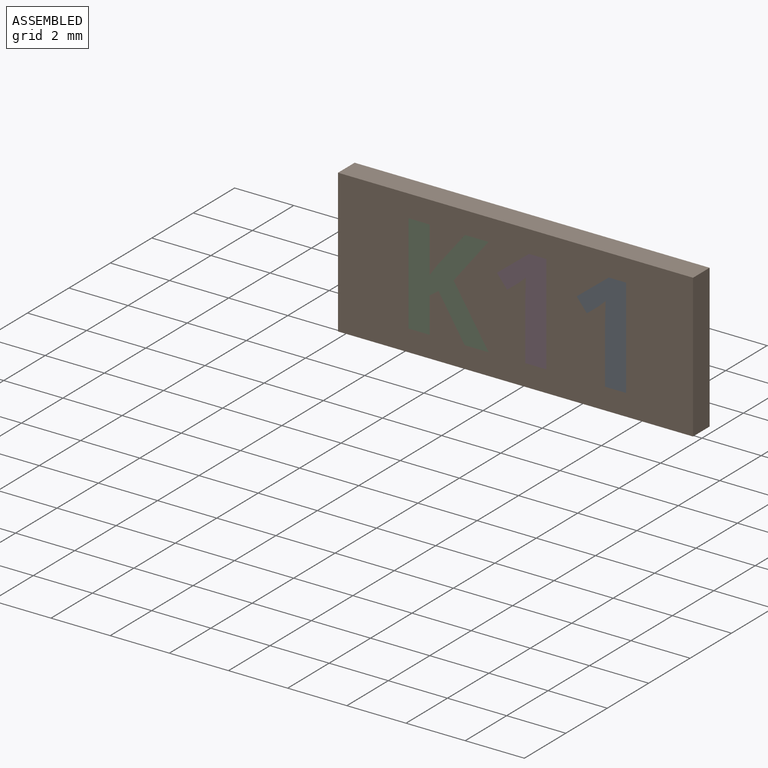
[diagram: assembled view]
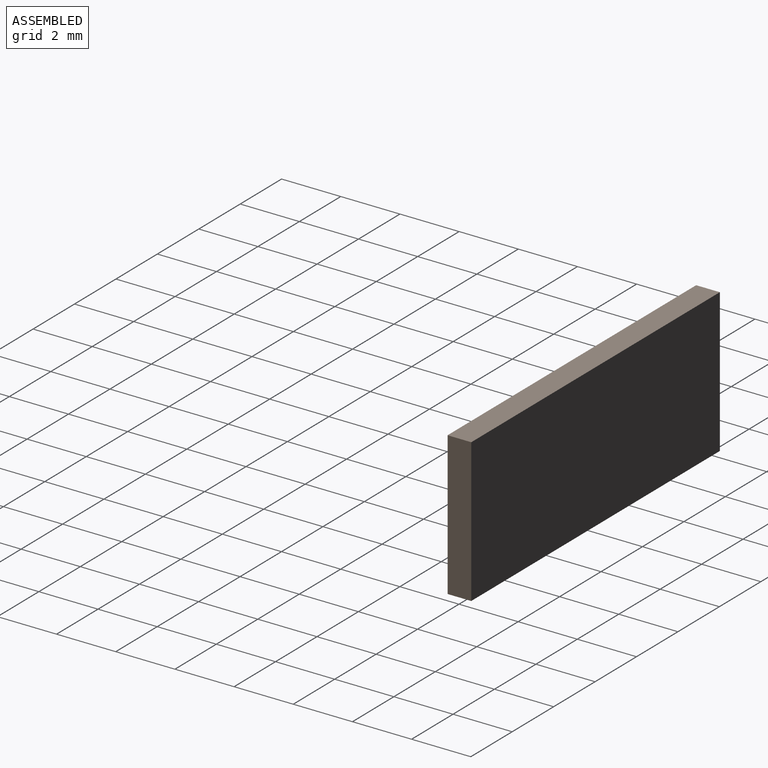
[diagram: assembled view, second angle]
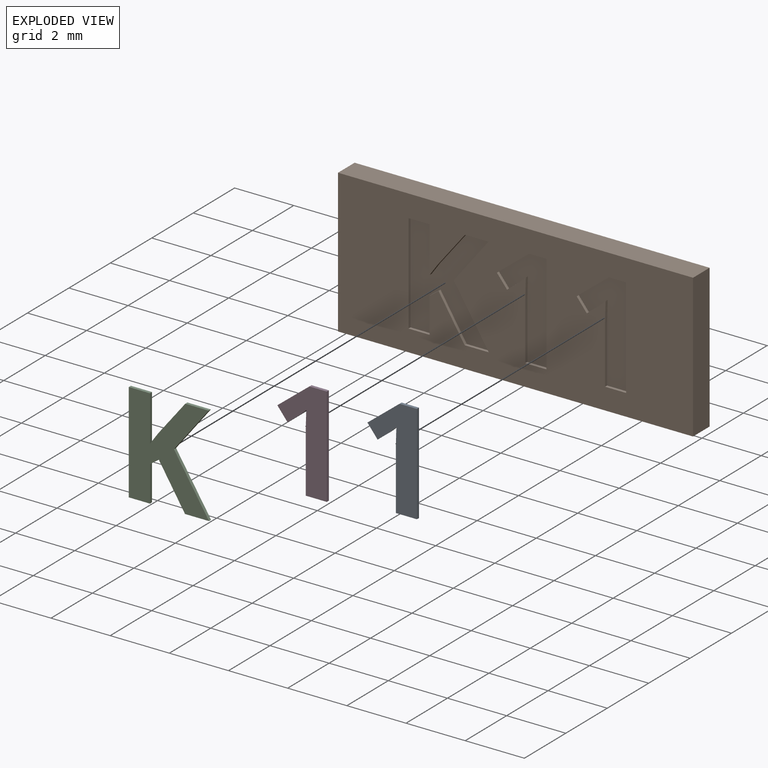
[diagram: exploded view]
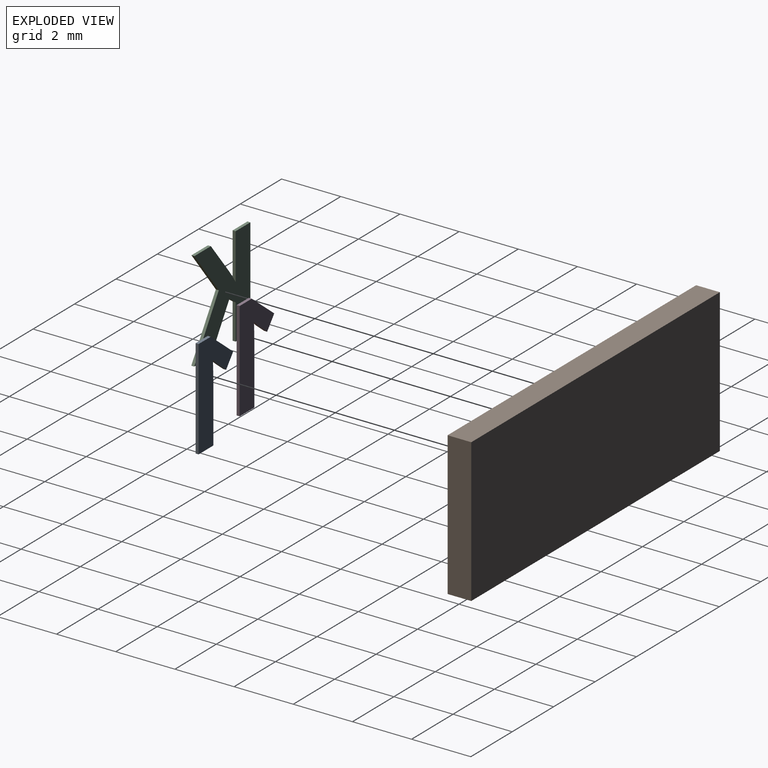
[diagram: exploded view, second angle]
ASSEMBLY  parts=4 mates=3
PART A: 12 faces, bbox 1.7x0.1x3.4 mm
  f0: plane 3.37x1.67mm, normal (0,-1,0), area 2.9mm2, adj f1,f2,f3,f4,f5,f6,f7,f9
  f1: plane 0.59x0.1mm, normal (0,0,1), area 0.1mm2, adj f0,f2,f8,f10
  f2: plane 1.09x0.86mm, normal (-0.62,0,0.78), area 0.1mm2, adj f0,f1,f3,f8
  f3: plane 0.43x0.34mm, normal (-0.78,0,-0.63), area 0.1mm2, adj f0,f2,f4,f8
  f4: plane 0.39x0.31mm, normal (0.63,0,-0.78), area 0mm2, adj f0,f3,f5,f8
  f5: extruded ~0.25x0.23mm, area 0mm2, adj f0,f4,f6,f8
  f6: plane 0.35x0.1mm, normal (-1,0,0.03), area 0mm2, adj f0,f5,f7,f8
  f7: plane 0.32x0.1mm, normal (-1,0,0.02), area 0mm2, adj f0,f6,f8,f9
  f8: plane 3.37x1.67mm, normal (0,1,0), area 2.9mm2, adj f1,f2,f3,f4,f5,f6,f7,f9
  f9: plane 1.95x0.1mm, normal (-1,0,0), area 0.2mm2, adj f0,f7,f8,f11
  f10: plane 3.37x0.1mm, normal (1,0,0), area 0.3mm2, adj f0,f1,f8,f11
  f11: plane 0.71x0.1mm, normal (0,0,-1), area 0.1mm2, adj f0,f8,f9,f10
PART B: 42 faces, bbox 12x0.8x4.9 mm
  f0: plane 12x4.85mm, normal (0,-1,0), area 47.1mm2, adj f1,f2,f3,f4,f6,f7,f8,f9
  f1: plane 12x0.8mm, normal (0,0,-1), area 9.6mm2, adj f0,f2,f4,f5
  f2: plane 4.85x0.8mm, normal (1,0,0), area 3.9mm2, adj f0,f1,f3,f5
  f3: plane 12x0.8mm, normal (0,0,1), area 9.6mm2, adj f0,f2,f4,f5
  f4: plane 4.85x0.8mm, normal (-1,0,0), area 3.9mm2, adj f0,f1,f3,f5
  f5: plane 12x4.85mm, normal (0,1,0), area 58.2mm2, adj f1,f2,f3,f4
  f6: plane 3.37x0.1mm, normal (-1,0,0), area 0.3mm2, adj f0,f7,f15,f16
  f7: plane 0.59x0.1mm, normal (0,0,-1), area 0.1mm2, adj f0,f6,f8,f16
  f8: plane 1.09x0.86mm, normal (0.62,0,-0.78), area 0.1mm2, adj f0,f7,f9,f16
  f9: plane 0.43x0.34mm, normal (0.78,0,0.63), area 0.1mm2, adj f0,f8,f10,f16
  f10: plane 0.39x0.31mm, normal (-0.63,0,0.78), area 0mm2, adj f0,f9,f11,f16
  f11: extruded ~0.25x0.23mm, area 0mm2, adj f0,f10,f12,f16
  f12: plane 0.35x0.1mm, normal (1,0,-0.03), area 0mm2, adj f0,f11,f13,f16
  f13: plane 0.32x0.1mm, normal (1,0,-0.02), area 0mm2, adj f0,f12,f14,f16
  f14: plane 1.95x0.1mm, normal (1,0,0), area 0.2mm2, adj f0,f13,f15,f16
  f15: plane 0.71x0.1mm, normal (0,0,1), area 0.1mm2, adj f0,f6,f14,f16
  f16: plane 3.37x1.67mm, normal (0,-1,0), area 2.9mm2, adj f6,f7,f8,f9,f10,f11,f12,f13
  f17: plane 3.37x0.1mm, normal (-1,0,0), area 0.3mm2, adj f0,f18,f26,f27
  f18: plane 0.59x0.1mm, normal (0,0,-1), area 0.1mm2, adj f0,f17,f19,f27
  f19: plane 1.09x0.86mm, normal (0.62,0,-0.78), area 0.1mm2, adj f0,f18,f20,f27
  f20: plane 0.43x0.34mm, normal (0.78,0,0.63), area 0.1mm2, adj f0,f19,f21,f27
  f21: plane 0.39x0.31mm, normal (-0.63,0,0.78), area 0mm2, adj f0,f20,f22,f27
  f22: extruded ~0.25x0.23mm, area 0mm2, adj f0,f21,f23,f27
  f23: plane 0.35x0.1mm, normal (1,0,-0.03), area 0mm2, adj f0,f22,f24,f27
  f24: plane 0.32x0.1mm, normal (1,0,-0.02), area 0mm2, adj f0,f23,f25,f27
  f25: plane 1.95x0.1mm, normal (1,0,0), area 0.2mm2, adj f0,f24,f26,f27
  f26: plane 0.71x0.1mm, normal (0,0,1), area 0.1mm2, adj f0,f17,f25,f27
  f27: plane 3.37x1.67mm, normal (0,-1,0), area 2.9mm2, adj f17,f18,f19,f20,f21,f22,f23,f24
  f28: plane 1.88x1.19mm, normal (-0.85,0,-0.53), area 0.2mm2, adj f0,f29,f40,f41
  f29: plane 1.49x1.18mm, normal (-0.79,0,0.62), area 0.2mm2, adj f0,f28,f30,f41
  f30: plane 0.79x0.1mm, normal (0,0,-1), area 0.1mm2, adj f0,f29,f31,f41
  f31: plane 1.15x0.91mm, normal (0.78,0,-0.62), area 0.1mm2, adj f0,f30,f32,f41
  f32: plane 0.4x0.28mm, normal (0.82,0,-0.58), area 0mm2, adj f0,f31,f33,f41
  f33: plane 1.54x0.1mm, normal (-1,0,0), area 0.2mm2, adj f0,f32,f34,f41
  f34: plane 0.72x0.1mm, normal (0,0,-1), area 0.1mm2, adj f0,f33,f35,f41
  f35: plane 3.37x0.1mm, normal (1,0,0), area 0.3mm2, adj f0,f34,f36,f41
  f36: plane 0.72x0.1mm, normal (0,0,1), area 0.1mm2, adj f0,f35,f37,f41
  f37: plane 1.2x0.1mm, normal (-1,0,0), area 0.1mm2, adj f0,f36,f38,f41
  f38: plane 0.3x0.22mm, normal (-0.58,0,0.81), area 0mm2, adj f0,f37,f39,f41
  f39: plane 1.42x0.88mm, normal (0.85,0,0.53), area 0.2mm2, adj f0,f38,f40,f41
  f40: plane 0.81x0.1mm, normal (0,0,1), area 0.1mm2, adj f0,f28,f39,f41
  f41: plane 3.37x2.71mm, normal (0,-1,0), area 5.2mm2, adj f28,f29,f30,f31,f32,f33,f34,f35
PART C: 15 faces, bbox 2.7x0.1x3.4 mm
  f0: plane 3.37x2.71mm, normal (0,-1,0), area 5.2mm2, adj f1,f2,f3,f4,f5,f6,f7,f8
  f1: plane 1.49x1.18mm, normal (0.79,0,-0.62), area 0.2mm2, adj f0,f2,f11,f13
  f2: plane 0.79x0.1mm, normal (0,0,1), area 0.1mm2, adj f0,f1,f3,f11
  f3: plane 1.15x0.91mm, normal (-0.78,0,0.62), area 0.1mm2, adj f0,f2,f4,f11
  f4: plane 0.4x0.28mm, normal (-0.82,0,0.58), area 0mm2, adj f0,f3,f5,f11
  f5: plane 1.54x0.1mm, normal (1,0,0), area 0.2mm2, adj f0,f4,f6,f11
  f6: plane 0.72x0.1mm, normal (0,0,1), area 0.1mm2, adj f0,f5,f7,f11
  f7: plane 3.37x0.1mm, normal (-1,0,0), area 0.3mm2, adj f0,f6,f8,f11
  f8: plane 0.72x0.1mm, normal (0,0,-1), area 0.1mm2, adj f0,f7,f9,f11
  f9: plane 1.2x0.1mm, normal (1,0,0), area 0.1mm2, adj f0,f8,f10,f11
  f10: plane 0.3x0.22mm, normal (0.58,0,-0.81), area 0mm2, adj f0,f9,f11,f12
  f11: plane 3.37x2.71mm, normal (0,1,0), area 5.2mm2, adj f1,f2,f3,f4,f5,f6,f7,f8
  f12: plane 1.42x0.88mm, normal (-0.85,0,-0.53), area 0.2mm2, adj f0,f10,f11,f14
  f13: plane 1.88x1.19mm, normal (0.85,0,0.53), area 0.2mm2, adj f0,f1,f11,f14
  f14: plane 0.81x0.1mm, normal (0,0,-1), area 0.1mm2, adj f0,f11,f12,f13
PART D: same geometry as A
PLACE A t=(1.33,0.4,0.01)mm
PLACE B t=(-0.02,0.4,0.01)mm
PLACE C t=(-1.37,0.4,0.01)mm
PLACE D t=(-1.37,0.4,0.01)mm
MATE fastened A.f0 <-> B.f0  axis (0,-1,0) through (3,-0.4,-1.69)mm
MATE fastened C.f0 <-> B.f0  axis (0,-1,0) through (-3.64,-0.4,-1.69)mm
MATE fastened D.f0 <-> B.f0  axis (0,-1,0) through (0.31,-0.4,-1.69)mm
